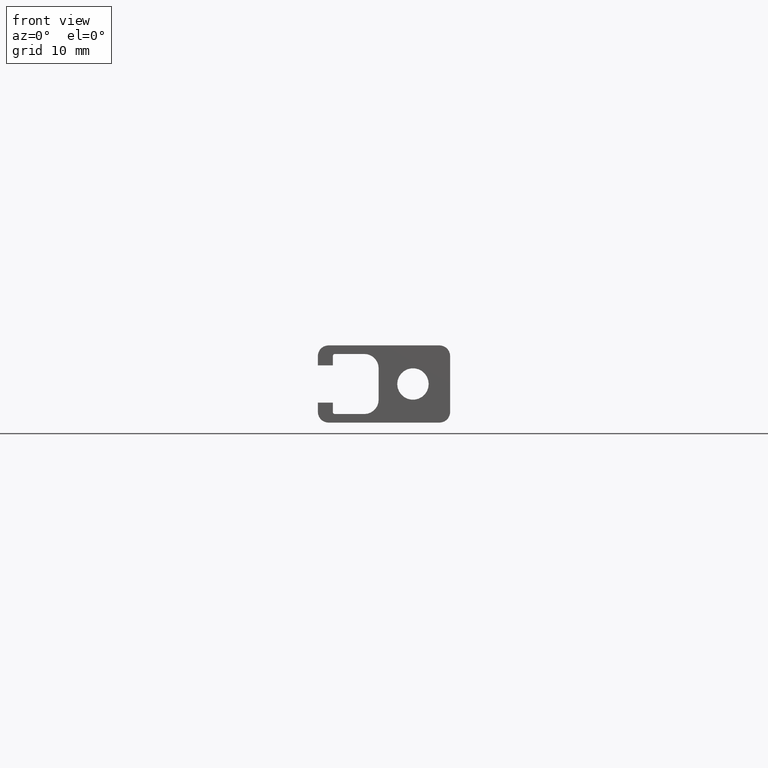
[diagram: clean part render]
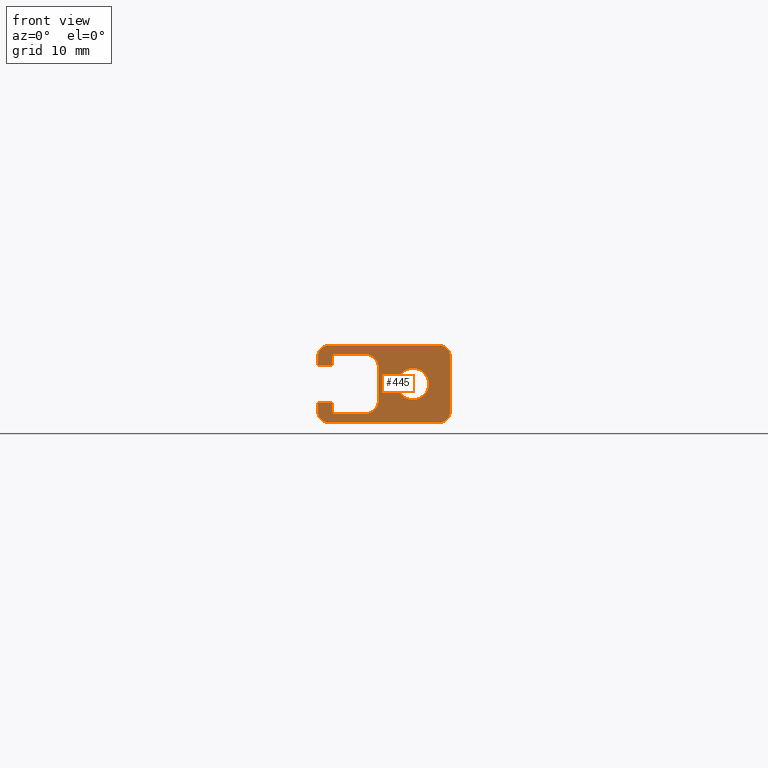
[diagram: same view with one face highlighted and labeled with its STEP entity id]
A machine part, front view. The second image highlights one B-rep face of the part: STEP entity #445.
In plain terms, the highlighted planar face has unit normal (0, 1, 0).
Its self-contained STEP definition (entity closure, byte-faithful):
#15=LINE('',#627,#59);
#20=LINE('',#641,#64);
#24=LINE('',#653,#68);
#28=LINE('',#665,#72);
#31=LINE('',#671,#75);
#34=LINE('',#677,#78);
#38=LINE('',#689,#82);
#42=LINE('',#701,#86);
#46=LINE('',#713,#90);
#50=LINE('',#725,#94);
#53=LINE('',#731,#97);
#56=LINE('',#737,#100);
#59=VECTOR('',#500,4.09999999999968);
#64=VECTOR('',#513,4.40000000000111);
#68=VECTOR('',#525,4.09999999999968);
#72=VECTOR('',#537,1.29999999999825);
#75=VECTOR('',#542,2.10000000000037);
#78=VECTOR('',#547,1.29999999999824);
#82=VECTOR('',#559,15.5000000000005);
#86=VECTOR('',#571,7.79999999999745);
#90=VECTOR('',#583,15.5000000000004);
#94=VECTOR('',#595,1.29999999999882);
#97=VECTOR('',#600,2.10000000000038);
#100=VECTOR('',#605,1.29999999999882);
#115=PLANE('',#488);
#118=FACE_BOUND('',#166,.T.);
#141=FACE_OUTER_BOUND('',#165,.T.);
#165=EDGE_LOOP('',(#373,#374,#375,#376,#377,#378,#379,#380,#381,#382,#383,
#384,#385,#386,#387,#388,#389,#390,#391,#392));
#166=EDGE_LOOP('',(#393));
#170=CIRCLE('',#451,2.2);
#171=CIRCLE('',#454,2.00000000000045);
#173=CIRCLE('',#458,2.00000000000045);
#175=CIRCLE('',#462,0.299999999999727);
#177=CIRCLE('',#468,1.49999999999977);
#179=CIRCLE('',#472,1.50000000000148);
#181=CIRCLE('',#476,1.49999999999974);
#183=CIRCLE('',#480,1.50000000000091);
#185=CIRCLE('',#486,0.299999999999727);
#188=VERTEX_POINT('',#622);
#189=VERTEX_POINT('',#625);
#190=VERTEX_POINT('',#626);
#193=VERTEX_POINT('',#634);
#195=VERTEX_POINT('',#640);
#197=VERTEX_POINT('',#646);
#199=VERTEX_POINT('',#652);
#201=VERTEX_POINT('',#658);
#203=VERTEX_POINT('',#664);
#205=VERTEX_POINT('',#670);
#207=VERTEX_POINT('',#676);
#209=VERTEX_POINT('',#682);
#211=VERTEX_POINT('',#688);
#213=VERTEX_POINT('',#694);
#215=VERTEX_POINT('',#700);
#217=VERTEX_POINT('',#706);
#219=VERTEX_POINT('',#712);
#221=VERTEX_POINT('',#718);
#223=VERTEX_POINT('',#724);
#225=VERTEX_POINT('',#730);
#227=VERTEX_POINT('',#736);
#230=EDGE_CURVE('',#188,#188,#170,.T.);
#231=EDGE_CURVE('',#189,#190,#15,.T.);
#235=EDGE_CURVE('',#190,#193,#171,.T.);
#238=EDGE_CURVE('',#193,#195,#20,.T.);
#241=EDGE_CURVE('',#195,#197,#173,.T.);
#244=EDGE_CURVE('',#197,#199,#24,.T.);
#247=EDGE_CURVE('',#199,#201,#175,.T.);
#250=EDGE_CURVE('',#201,#203,#28,.T.);
#253=EDGE_CURVE('',#203,#205,#31,.T.);
#256=EDGE_CURVE('',#205,#207,#34,.T.);
#259=EDGE_CURVE('',#207,#209,#177,.T.);
#262=EDGE_CURVE('',#209,#211,#38,.T.);
#265=EDGE_CURVE('',#211,#213,#179,.T.);
#268=EDGE_CURVE('',#213,#215,#42,.T.);
#271=EDGE_CURVE('',#215,#217,#181,.T.);
#274=EDGE_CURVE('',#217,#219,#46,.T.);
#277=EDGE_CURVE('',#219,#221,#183,.T.);
#280=EDGE_CURVE('',#221,#223,#50,.T.);
#283=EDGE_CURVE('',#223,#225,#53,.T.);
#286=EDGE_CURVE('',#225,#227,#56,.T.);
#289=EDGE_CURVE('',#227,#189,#185,.T.);
#373=ORIENTED_EDGE('',*,*,#289,.T.);
#374=ORIENTED_EDGE('',*,*,#231,.T.);
#375=ORIENTED_EDGE('',*,*,#235,.T.);
#376=ORIENTED_EDGE('',*,*,#238,.T.);
#377=ORIENTED_EDGE('',*,*,#241,.T.);
#378=ORIENTED_EDGE('',*,*,#244,.T.);
#379=ORIENTED_EDGE('',*,*,#247,.T.);
#380=ORIENTED_EDGE('',*,*,#250,.T.);
#381=ORIENTED_EDGE('',*,*,#253,.T.);
#382=ORIENTED_EDGE('',*,*,#256,.T.);
#383=ORIENTED_EDGE('',*,*,#259,.T.);
#384=ORIENTED_EDGE('',*,*,#262,.T.);
#385=ORIENTED_EDGE('',*,*,#265,.T.);
#386=ORIENTED_EDGE('',*,*,#268,.T.);
#387=ORIENTED_EDGE('',*,*,#271,.T.);
#388=ORIENTED_EDGE('',*,*,#274,.T.);
#389=ORIENTED_EDGE('',*,*,#277,.T.);
#390=ORIENTED_EDGE('',*,*,#280,.T.);
#391=ORIENTED_EDGE('',*,*,#283,.T.);
#392=ORIENTED_EDGE('',*,*,#286,.T.);
#393=ORIENTED_EDGE('',*,*,#230,.T.);
#445=ADVANCED_FACE('',(#141,#118),#115,.F.);
#451=AXIS2_PLACEMENT_3D('',#623,#496,#497);
#454=AXIS2_PLACEMENT_3D('',#635,#506,#507);
#458=AXIS2_PLACEMENT_3D('',#647,#518,#519);
#462=AXIS2_PLACEMENT_3D('',#659,#530,#531);
#468=AXIS2_PLACEMENT_3D('',#683,#552,#553);
#472=AXIS2_PLACEMENT_3D('',#695,#564,#565);
#476=AXIS2_PLACEMENT_3D('',#707,#576,#577);
#480=AXIS2_PLACEMENT_3D('',#719,#588,#589);
#486=AXIS2_PLACEMENT_3D('',#742,#610,#611);
#488=AXIS2_PLACEMENT_3D('',#744,#614,#615);
#496=DIRECTION('center_axis',(0.,1.,0.));
#497=DIRECTION('ref_axis',(1.,0.,0.));
#500=DIRECTION('',(1.,0.,5.54569940105487E-13));
#506=DIRECTION('center_axis',(0.,1.,0.));
#507=DIRECTION('ref_axis',(0.,0.,1.));
#513=DIRECTION('',(-1.00929365874989E-15,0.,-1.));
#518=DIRECTION('center_axis',(0.,1.,0.));
#519=DIRECTION('ref_axis',(1.,0.,0.));
#525=DIRECTION('',(-1.,0.,1.38642485026372E-13));
#530=DIRECTION('center_axis',(0.,1.,0.));
#531=DIRECTION('ref_axis',(0.,0.,-1.));
#537=DIRECTION('',(3.41607084500508E-15,0.,1.));
#542=DIRECTION('',(-1.,0.,-4.22942104619033E-15));
#547=DIRECTION('',(6.83214169001023E-15,0.,-1.));
#552=DIRECTION('center_axis',(0.,-1.,0.));
#553=DIRECTION('ref_axis',(-5.92118946466844E-15,0.,1.));
#559=DIRECTION('',(1.,0.,-1.10735793294867E-13));
#564=DIRECTION('center_axis',(0.,-1.,0.));
#565=DIRECTION('ref_axis',(-1.,0.,-2.96059473233082E-15));
#571=DIRECTION('',(-2.24321985488438E-13,0.,1.));
#576=DIRECTION('center_axis',(0.,-1.,0.));
#577=DIRECTION('ref_axis',(-4.44089209850139E-15,0.,-1.));
#583=DIRECTION('',(-1.,0.,7.56384202583311E-14));
#588=DIRECTION('center_axis',(0.,-1.,0.));
#589=DIRECTION('ref_axis',(1.,0.,-5.92118946466836E-15));
#595=DIRECTION('',(0.,0.,-1.));
#600=DIRECTION('',(1.,0.,-4.22942104619031E-15));
#605=DIRECTION('',(-6.83214169000715E-15,0.,1.));
#610=DIRECTION('center_axis',(0.,1.,0.));
#611=DIRECTION('ref_axis',(-1.,0.,0.));
#614=DIRECTION('center_axis',(0.,1.,0.));
#615=DIRECTION('ref_axis',(0.,0.,1.));
#622=CARTESIAN_POINT('',(1.84999999999931,0.,5.68703610903893E-13));
#623=CARTESIAN_POINT('Origin',(4.04999999999931,0.,5.6843418860808E-13));
#625=CARTESIAN_POINT('',(-6.8499999999999,0.,4.19999999999845));
#626=CARTESIAN_POINT('',(-2.75000000000022,0.,4.20000000000073));
#627=CARTESIAN_POINT('',(-6.8499999999999,0.,4.19999999999845));
#634=CARTESIAN_POINT('',(-0.749999999999762,0.,2.20000000000027));
#635=CARTESIAN_POINT('Origin',(-2.75000000000022,0.,2.20000000000028));
#640=CARTESIAN_POINT('',(-0.749999999999766,0.,-2.20000000000084));
#641=CARTESIAN_POINT('',(-0.749999999999762,0.,2.20000000000027));
#646=CARTESIAN_POINT('',(-2.75000000000022,0.,-4.2000000000013));
#647=CARTESIAN_POINT('Origin',(-2.75000000000022,0.,-2.20000000000084));
#652=CARTESIAN_POINT('',(-6.8499999999999,0.,-4.20000000000073));
#653=CARTESIAN_POINT('',(-2.75000000000022,0.,-4.2000000000013));
#658=CARTESIAN_POINT('',(-7.14999999999963,0.,-3.89999999999873));
#659=CARTESIAN_POINT('Origin',(-6.8499999999999,0.,-3.89999999999873));
#664=CARTESIAN_POINT('',(-7.14999999999963,0.,-2.60000000000048));
#665=CARTESIAN_POINT('',(-7.14999999999963,0.,-3.89999999999873));
#670=CARTESIAN_POINT('',(-9.25,0.,-2.60000000000049));
#671=CARTESIAN_POINT('',(-7.14999999999963,0.,-2.60000000000048));
#676=CARTESIAN_POINT('',(-9.24999999999999,0.,-3.89999999999873));
#677=CARTESIAN_POINT('',(-9.25,0.,-2.60000000000049));
#682=CARTESIAN_POINT('',(-7.75000000000021,0.,-5.39999999999849));
#683=CARTESIAN_POINT('Origin',(-7.75000000000022,0.,-3.89999999999873));
#688=CARTESIAN_POINT('',(7.75000000000024,0.,-5.40000000000021));
#689=CARTESIAN_POINT('',(-7.75000000000021,0.,-5.39999999999849));
#694=CARTESIAN_POINT('',(9.25000000000171,0.,-3.89999999999872));
#695=CARTESIAN_POINT('Origin',(7.75000000000023,0.,-3.89999999999873));
#700=CARTESIAN_POINT('',(9.24999999999996,0.,3.89999999999873));
#701=CARTESIAN_POINT('',(9.25000000000171,0.,-3.89999999999872));
#706=CARTESIAN_POINT('',(7.75000000000023,0.,5.39999999999846));
#707=CARTESIAN_POINT('Origin',(7.75000000000022,0.,3.89999999999872));
#712=CARTESIAN_POINT('',(-7.75000000000021,0.,5.39999999999964));
#713=CARTESIAN_POINT('',(7.75000000000023,0.,5.39999999999846));
#718=CARTESIAN_POINT('',(-9.25,0.,3.89999999999874));
#719=CARTESIAN_POINT('Origin',(-7.75000000000021,0.,3.89999999999873));
#724=CARTESIAN_POINT('',(-9.25,0.,2.59999999999991));
#725=CARTESIAN_POINT('',(-9.25,0.,3.89999999999874));
#730=CARTESIAN_POINT('',(-7.14999999999962,0.,2.5999999999999));
#731=CARTESIAN_POINT('',(-9.25,0.,2.59999999999991));
#736=CARTESIAN_POINT('',(-7.14999999999963,0.,3.89999999999873));
#737=CARTESIAN_POINT('',(-7.14999999999962,0.,2.5999999999999));
#742=CARTESIAN_POINT('Origin',(-6.8499999999999,0.,3.89999999999873));
#744=CARTESIAN_POINT('Origin',(-0.812222789170337,0.,-2.11269015450213E-13));